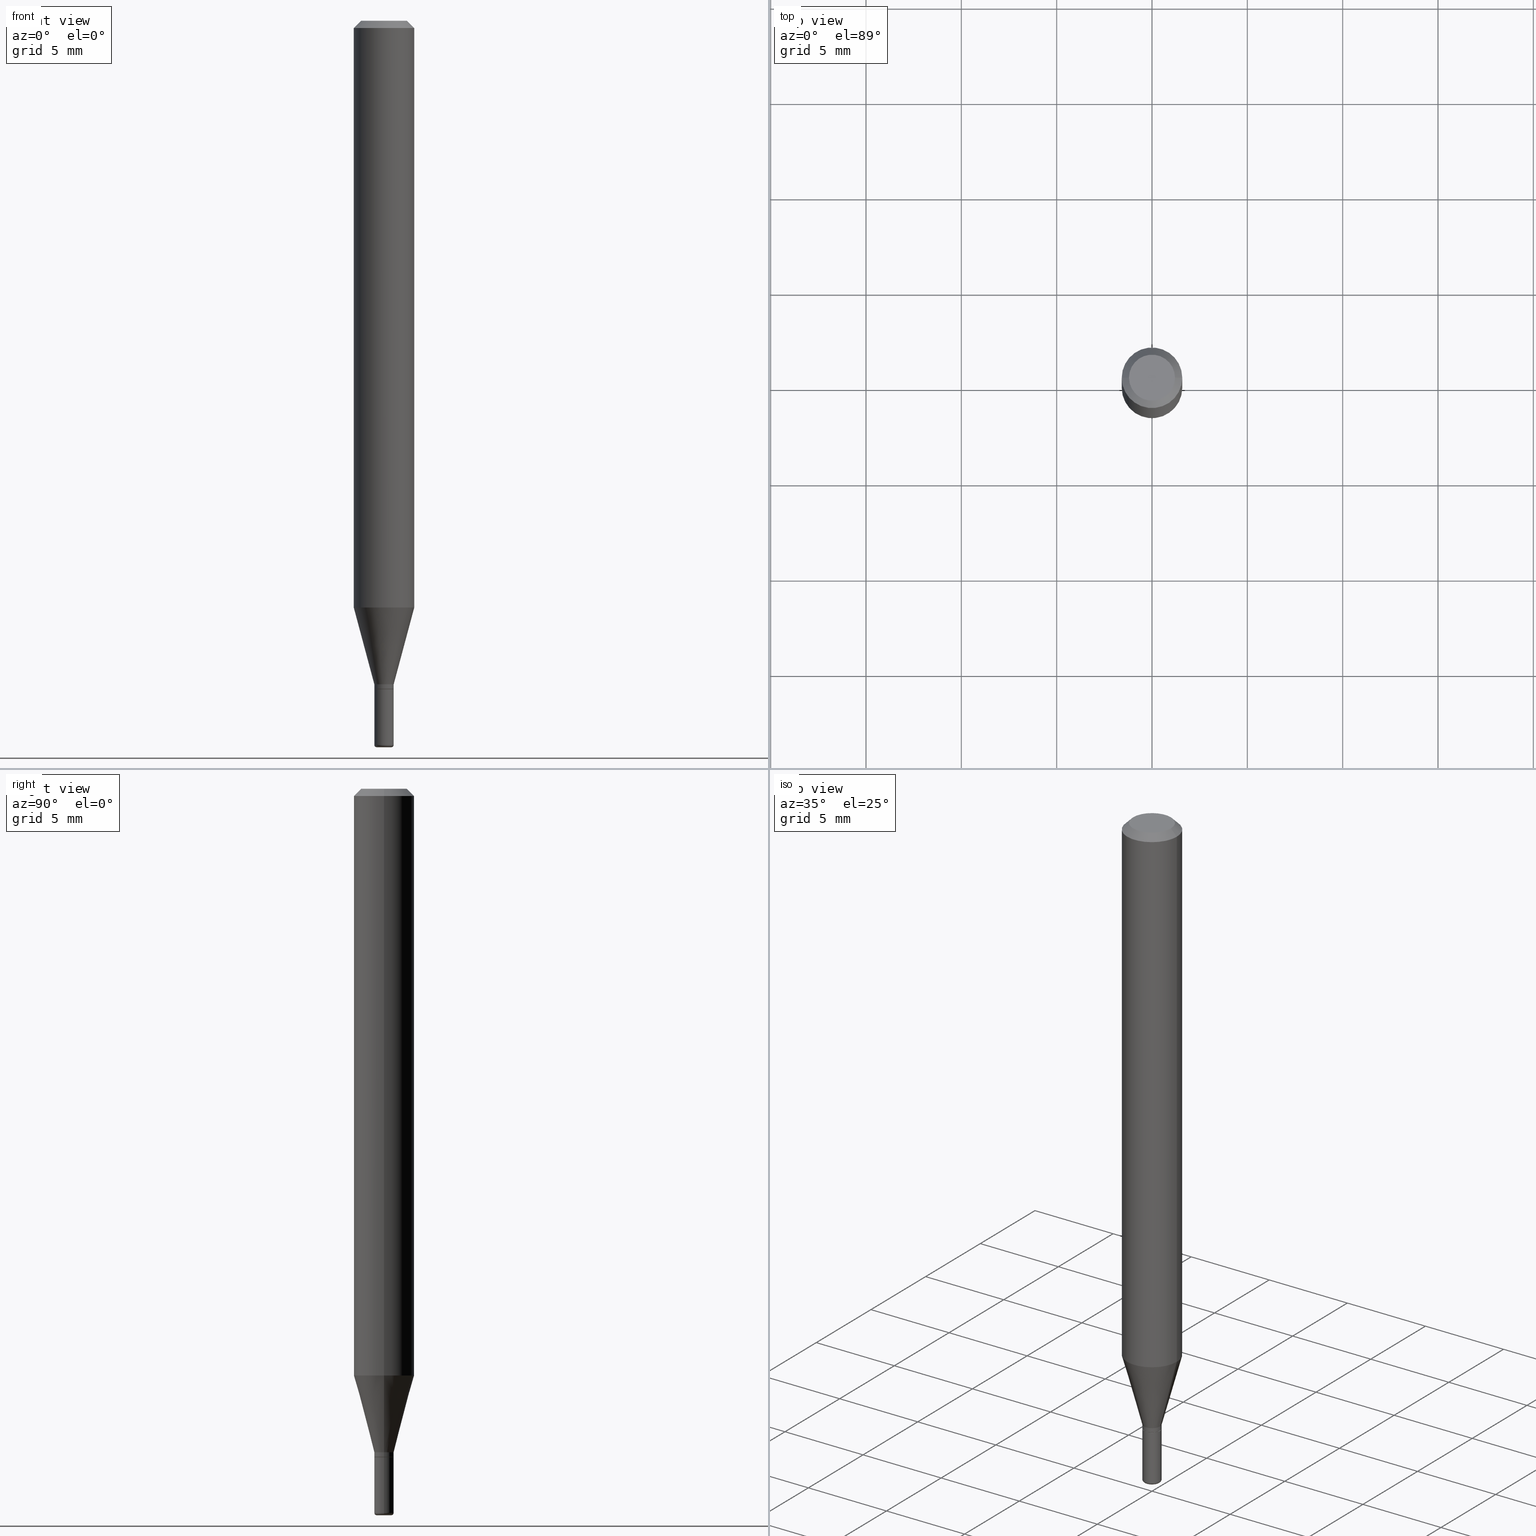
[diagram: canonical four-view strip — front | top / right | iso, engineering-drawing reading convention]
A machine part, canonical four-view strip (front | top / right | iso — engineering-drawing reading convention). The complete STEP part file that produces these views, byte-faithful:
ISO-10303-21;
HEADER;
FILE_DESCRIPTION (( 'STEP AP203' ),
    '1' );
FILE_NAME ('08655.STEP',
    '2024-02-29T20:11:54',
    ( '' ),
    ( '' ),
    'SwSTEP 2.0',
    'SolidWorks 2023',
    '' );
FILE_SCHEMA (( 'CONFIG_CONTROL_DESIGN' ));
ENDSEC;

DATA;
#1 = PERSON_AND_ORGANIZATION ( #372, #334 ) ;
#2 = EDGE_CURVE ( 'NONE', #157, #448, #465, .T. ) ;
#3 = PERSON_AND_ORGANIZATION ( #372, #334 ) ;
#4 = AXIS2_PLACEMENT_3D ( 'NONE', #487, #155, #360 ) ;
#5 = CARTESIAN_POINT ( 'NONE',  ( 3.350292264473637608E-29, -4.783329434215110683E-15, -1.370000000000000329 ) ) ;
#6 = CC_DESIGN_APPROVAL ( #86, ( #367 ) ) ;
#7 = DESIGN_CONTEXT ( 'detailed design', #124, 'design' ) ;
#8 = DIRECTION ( 'NONE',  ( 1.000000000000000000, -6.982962677686266711E-15, 0.000000000000000000 ) ) ;
#9 = VERTEX_POINT ( 'NONE', #368 ) ;
#10 = DIRECTION ( 'NONE',  ( 1.000000000000000000, -6.982962677686276177E-15, 0.000000000000000000 ) ) ;
#11 = SHAPE_DEFINITION_REPRESENTATION ( #182, #345 ) ;
#12 = EDGE_CURVE ( 'NONE', #375, #143, #115, .T. ) ;
#13 = AXIS2_PLACEMENT_3D ( 'NONE', #121, #266, #391 ) ;
#14 = ORIENTED_EDGE ( 'NONE', *, *, #88, .T. ) ;
#15 = VERTEX_POINT ( 'NONE', #246 ) ;
#16 = DIRECTION ( 'NONE',  ( -2.438088387897960049E-29, 3.491481338843145188E-15, 1.000000000000000000 ) ) ;
#17 = EDGE_CURVE ( 'NONE', #74, #395, #106, .T. ) ;
#18 = CARTESIAN_POINT ( 'NONE',  ( 3.668203209277706016E-29, -5.237222008264719754E-15, -1.500000000000000444 ) ) ;
#19 = VERTEX_POINT ( 'NONE', #233 ) ;
#20 = CARTESIAN_POINT ( 'NONE',  ( 0.06250000000000000000, -4.811533449433669144E-16, -0.01499999999999970281 ) ) ;
#21 = DIRECTION ( 'NONE',  ( 1.000000000000000000, -6.982962677686284065E-15, 0.000000000000000000 ) ) ;
#22 = CARTESIAN_POINT ( 'NONE',  ( 2.962411176570810218E-29, -4.229538039829860109E-15, -1.211387840678323391 ) ) ;
#23 = LINE ( 'NONE', #446, #432 ) ;
#24 = ADVANCED_FACE ( 'NONE', ( #238 ), #359, .T. ) ;
#25 = DIRECTION ( 'NONE',  ( -2.445468806185136597E-29, 3.491481338843145583E-15, 1.000000000000000000 ) ) ;
#26 = CIRCLE ( 'NONE', #514, 0.06250000000000000000 ) ;
#27 = LOCAL_TIME ( 15, 11, 54.00000000000000000, #460 ) ;
#28 = DATE_TIME_ROLE ( 'creation_date' ) ;
#29 = CARTESIAN_POINT ( 'NONE',  ( 0.000000000000000000, 0.000000000000000000, 0.000000000000000000 ) ) ;
#30 = ORIENTED_EDGE ( 'NONE', *, *, #17, .T. ) ;
#31 = ORIENTED_EDGE ( 'NONE', *, *, #203, .T. ) ;
#32 = CARTESIAN_POINT ( 'NONE',  ( -0.01950000000000008671, -4.679688414130321489E-15, -1.380000000000000115 ) ) ;
#33 = CC_DESIGN_PERSON_AND_ORGANIZATION_ASSIGNMENT ( #389, #356, ( #367 ) ) ;
#34 = DIRECTION ( 'NONE',  ( 1.000000000000000000, -6.982962677686266711E-15, 4.876176775795935793E-29 ) ) ;
#35 = APPROVAL_DATE_TIME ( #72, #393 ) ;
#36 = DIRECTION ( 'NONE',  ( -2.445468806185136877E-29, 3.491481338843145188E-15, 1.000000000000000000 ) ) ;
#37 = CONICAL_SURFACE ( 'NONE', #167, 0.02000000000000008021, 0.2617993877991493523 ) ;
#38 = VERTEX_POINT ( 'NONE', #202 ) ;
#39 = DIRECTION ( 'NONE',  ( 2.438088387897960049E-29, -3.491481338843145188E-15, -1.000000000000000000 ) ) ;
#40 = APPROVAL_STATUS ( 'not_yet_approved' ) ;
#41 = AXIS2_PLACEMENT_3D ( 'NONE', #510, #259, #303 ) ;
#42 = DIRECTION ( 'NONE',  ( 1.000000000000000000, -6.982962677686276177E-15, 0.000000000000000000 ) ) ;
#43 = LOCAL_TIME ( 15, 11, 54.00000000000000000, #51 ) ;
#44 = EDGE_LOOP ( 'NONE', ( #421, #340 ) ) ;
#45 = CARTESIAN_POINT ( 'NONE',  ( 3.374746952535488593E-29, -4.818244247603541543E-15, -1.380000000000000115 ) ) ;
#46 = DIRECTION ( 'NONE',  ( -2.445468806185136597E-29, 3.491481338843145583E-15, 1.000000000000000000 ) ) ;
#47 = ADVANCED_FACE ( 'NONE', ( #125 ), #234, .F. ) ;
#48 = ORIENTED_EDGE ( 'NONE', *, *, #247, .T. ) ;
#49 = VERTEX_POINT ( 'NONE', #163 ) ;
#50 = ORIENTED_EDGE ( 'NONE', *, *, #378, .F. ) ;
#51 = COORDINATED_UNIVERSAL_TIME_OFFSET ( 5, 0, .BEHIND. ) ;
#52 = VECTOR ( 'NONE', #352, 39.37007874015748143 ) ;
#53 = AXIS2_PLACEMENT_3D ( 'NONE', #223, #382, #34 ) ;
#54 = TOROIDAL_SURFACE ( 'NONE', #219, 0.01499999999999999944, 0.005000000000000177913 ) ;
#55 = EDGE_LOOP ( 'NONE', ( #214, #507, #271, #205 ) ) ;
#56 = EDGE_CURVE ( 'NONE', #38, #150, #319, .T. ) ;
#57 = CYLINDRICAL_SURFACE ( 'NONE', #116, 0.02000000000000009062 ) ;
#58 = DIRECTION ( 'NONE',  ( 1.000000000000000000, -6.982962677686266711E-15, 0.000000000000000000 ) ) ;
#59 = AXIS2_PLACEMENT_3D ( 'NONE', #339, #73, #385 ) ;
#60 = DIRECTION ( 'NONE',  ( -2.445468806185136597E-29, 3.491481338843145583E-15, 1.000000000000000000 ) ) ;
#61 = FACE_OUTER_BOUND ( 'NONE', #114, .T. ) ;
#62 = ORIENTED_EDGE ( 'NONE', *, *, #498, .T. ) ;
#63 = DIRECTION ( 'NONE',  ( -2.445468806185136597E-29, 3.491481338843145583E-15, 1.000000000000000000 ) ) ;
#64 = CARTESIAN_POINT ( 'NONE',  ( 0.02000000000000008021, -4.922988687768836490E-15, -1.370000000000000329 ) ) ;
#65 = ORIENTED_EDGE ( 'NONE', *, *, #349, .T. ) ;
#66 = CIRCLE ( 'NONE', #365, 0.01500000000000000291 ) ;
#67 = CIRCLE ( 'NONE', #458, 0.04750000000000000749 ) ;
#68 = PERSON_AND_ORGANIZATION ( #372, #334 ) ;
#69 = EDGE_CURVE ( 'NONE', #138, #15, #376, .T. ) ;
#70 = EDGE_LOOP ( 'NONE', ( #204, #126, #62, #147 ) ) ;
#71 = DIRECTION ( 'NONE',  ( -1.000000000000000000, 6.982962677686265922E-15, -4.876176775795935793E-29 ) ) ;
#72 = DATE_AND_TIME ( #338, #27 ) ;
#73 = DIRECTION ( 'NONE',  ( -2.445468806185136597E-29, 3.491481338843145583E-15, 1.000000000000000000 ) ) ;
#74 = VERTEX_POINT ( 'NONE', #154 ) ;
#75 = FACE_OUTER_BOUND ( 'NONE', #398, .T. ) ;
#76 = DIRECTION ( 'NONE',  ( -2.445468806185136597E-29, 3.491481338843145583E-15, 1.000000000000000000 ) ) ;
#77 = DIRECTION ( 'NONE',  ( 2.438088387897960049E-29, -3.491481338843145188E-15, -1.000000000000000000 ) ) ;
#78 = EDGE_CURVE ( 'NONE', #112, #199, #89, .T. ) ;
#79 = AXIS2_PLACEMENT_3D ( 'NONE', #326, #451, #95 ) ;
#80 = VECTOR ( 'NONE', #208, 39.37007874015748854 ) ;
#81 = CC_DESIGN_SECURITY_CLASSIFICATION ( #367, ( #502 ) ) ;
#82 = PRODUCT ( '08655', '08655', '', ( #341 ) ) ;
#83 = AXIS2_PLACEMENT_3D ( 'NONE', #193, #39, #311 ) ;
#84 = DIRECTION ( 'NONE',  ( 1.000000000000000000, -6.982962677686276177E-15, 0.000000000000000000 ) ) ;
#85 = DIRECTION ( 'NONE',  ( -2.445468806185136597E-29, 3.491481338843145583E-15, 1.000000000000000000 ) ) ;
#86 = APPROVAL ( #40, 'UNSPECIFIED' ) ;
#87 = ORIENTED_EDGE ( 'NONE', *, *, #88, .F. ) ;
#88 = EDGE_CURVE ( 'NONE', #258, #353, #410, .T. ) ;
#89 = CIRCLE ( 'NONE', #212, 0.01950000000000008671 ) ;
#90 = CC_DESIGN_APPROVAL ( #393, ( #190 ) ) ;
#91 = DIRECTION ( 'NONE',  ( -2.445468806185136597E-29, 3.491481338843145583E-15, 1.000000000000000000 ) ) ;
#92 = EDGE_LOOP ( 'NONE', ( #108, #268, #275, #371 ) ) ;
#93 = DIRECTION ( 'NONE',  ( 1.000000000000000000, -6.982962677686252511E-15, 0.000000000000000000 ) ) ;
#94 = ORIENTED_EDGE ( 'NONE', *, *, #471, .F. ) ;
#95 = DIRECTION ( 'NONE',  ( 1.000000000000000000, -6.982962677686266711E-15, 4.852736867747365086E-29 ) ) ;
#96 = DIRECTION ( 'NONE',  ( -1.000000000000000000, 7.105427357601058657E-15, 0.000000000000000000 ) ) ;
#97 = EDGE_CURVE ( 'NONE', #143, #375, #187, .T. ) ;
#98 = DIRECTION ( 'NONE',  ( -2.445468806185136597E-29, 3.491481338843145583E-15, 1.000000000000000000 ) ) ;
#99 = LOCAL_TIME ( 15, 11, 54.00000000000000000, #260 ) ;
#100 = FACE_OUTER_BOUND ( 'NONE', #227, .T. ) ;
#101 = PERSON_AND_ORGANIZATION ( #372, #334 ) ;
#102 = LINE ( 'NONE', #265, #80 ) ;
#103 = SECURITY_CLASSIFICATION_LEVEL ( 'unclassified' ) ;
#104 = ADVANCED_FACE ( 'NONE', ( #264 ), #296, .T. ) ;
#105 = CLOSED_SHELL ( 'NONE', ( #241, #358, #161, #210, #479, #47 ) ) ;
#106 = CIRCLE ( 'NONE', #277, 0.02000000000000009062 ) ;
#107 = CARTESIAN_POINT ( 'NONE',  ( 3.350292264473637608E-29, -4.783329434215110683E-15, -1.370000000000000329 ) ) ;
#108 = ORIENTED_EDGE ( 'NONE', *, *, #337, .T. ) ;
#109 = DIRECTION ( 'NONE',  ( -0.7071067811864267805, 7.493145998869918709E-15, 0.7071067811866682540 ) ) ;
#110 = CYLINDRICAL_SURFACE ( 'NONE', #53, 0.06250000000000000000 ) ;
#111 = APPLICATION_PROTOCOL_DEFINITION ( 'international standard', 'config_control_design', 1994, #480 ) ;
#112 = VERTEX_POINT ( 'NONE', #231 ) ;
#113 = EDGE_CURVE ( 'NONE', #375, #138, #396, .T. ) ;
#114 = EDGE_LOOP ( 'NONE', ( #328, #493, #281, #409 ) ) ;
#115 = CIRCLE ( 'NONE', #476, 0.06250000000000000000 ) ;
#116 = AXIS2_PLACEMENT_3D ( 'NONE', #484, #209, #373 ) ;
#117 = DIRECTION ( 'NONE',  ( -2.445468806185136597E-29, 3.491481338843145583E-15, 1.000000000000000000 ) ) ;
#118 = APPROVAL_ROLE ( '' ) ;
#119 = DIRECTION ( 'NONE',  ( 1.000000000000000000, -6.982962677686270655E-15, 0.000000000000000000 ) ) ;
#120 = APPROVAL ( #426, 'UNSPECIFIED' ) ;
#121 = CARTESIAN_POINT ( 'NONE',  ( 3.668203209277706016E-29, -5.237222008264719754E-15, -1.500000000000000444 ) ) ;
#122 = AXIS2_PLACEMENT_3D ( 'NONE', #240, #63, #361 ) ;
#123 = DATE_TIME_ROLE ( 'classification_date' ) ;
#124 = APPLICATION_CONTEXT ( 'configuration controlled 3d designs of mechanical parts and assemblies' ) ;
#125 = FACE_OUTER_BOUND ( 'NONE', #400, .T. ) ;
#126 = ORIENTED_EDGE ( 'NONE', *, *, #12, .T. ) ;
#127 = CARTESIAN_POINT ( 'NONE',  ( 0.02000000000000009062, -1.396592535537259554E-16, 9.752353551591915727E-31 ) ) ;
#128 = DIRECTION ( 'NONE',  ( -2.445468806185136597E-29, 3.491481338843145583E-15, 1.000000000000000000 ) ) ;
#129 = AXIS2_PLACEMENT_3D ( 'NONE', #301, #310, #8 ) ;
#130 = CC_DESIGN_APPROVAL ( #120, ( #502 ) ) ;
#131 = CARTESIAN_POINT ( 'NONE',  ( -0.02000000000000008021, -4.641220887063090519E-15, -1.370000000000000329 ) ) ;
#132 = CYLINDRICAL_SURFACE ( 'NONE', #456, 0.02000000000000009062 ) ;
#133 = DIRECTION ( 'NONE',  ( -2.445468806185136877E-29, 3.491481338843145188E-15, 1.000000000000000000 ) ) ;
#134 = PRODUCT_RELATED_PRODUCT_CATEGORY ( 'detail', '', ( #82 ) ) ;
#135 = DIRECTION ( 'NONE',  ( 0.7071067811864267805, -2.468850131080992517E-15, 0.7071067811866682540 ) ) ;
#136 = AXIS2_PLACEMENT_3D ( 'NONE', #5, #117, #390 ) ;
#137 = CARTESIAN_POINT ( 'NONE',  ( 3.373524218132395792E-29, -4.816498506934119251E-15, -1.379499999999999948 ) ) ;
#138 = VERTEX_POINT ( 'NONE', #144 ) ;
#139 = EDGE_CURVE ( 'NONE', #258, #38, #251, .T. ) ;
#140 = APPROVAL_STATUS ( 'not_yet_approved' ) ;
#141 = FACE_OUTER_BOUND ( 'NONE', #44, .T. ) ;
#142 = DIRECTION ( 'NONE',  ( -2.445468806185136597E-29, 3.491481338843145583E-15, 1.000000000000000000 ) ) ;
#143 = VERTEX_POINT ( 'NONE', #183 ) ;
#144 = CARTESIAN_POINT ( 'NONE',  ( -0.06250000000000000000, -1.696865920106190386E-15, -0.01499999999999970281 ) ) ;
#145 = AXIS2_PLACEMENT_3D ( 'NONE', #511, #299, #425 ) ;
#146 = PERSON_AND_ORGANIZATION_ROLE ( 'design_owner' ) ;
#147 = ORIENTED_EDGE ( 'NONE', *, *, #69, .F. ) ;
#148 = CARTESIAN_POINT ( 'NONE',  ( -0.06250000000000000000, 4.440892098500626162E-16, -3.074334431409316114E-30 ) ) ;
#149 = DIRECTION ( 'NONE',  ( -2.445468806185136877E-29, 3.491481338843145188E-15, 1.000000000000000000 ) ) ;
#150 = VERTEX_POINT ( 'NONE', #298 ) ;
#151 = AXIS2_PLACEMENT_3D ( 'NONE', #229, #348, #434 ) ;
#152 = CALENDAR_DATE ( 2024, 29, 2 ) ;
#153 = EDGE_CURVE ( 'NONE', #199, #74, #381, .T. ) ;
#154 = CARTESIAN_POINT ( 'NONE',  ( -0.02000000000000009062, -4.674389959782099087E-15, -1.379499999999999948 ) ) ;
#155 = DIRECTION ( 'NONE',  ( -2.445468806185136597E-29, 3.491481338843145583E-15, 1.000000000000000000 ) ) ;
#156 = ORIENTED_EDGE ( 'NONE', *, *, #483, .T. ) ;
#157 = VERTEX_POINT ( 'NONE', #255 ) ;
#158 = CARTESIAN_POINT ( 'NONE',  ( 2.962411176570810218E-29, -4.229538039829860109E-15, -1.211387840678323391 ) ) ;
#159 = CARTESIAN_POINT ( 'NONE',  ( 3.655975865246779122E-29, -5.219764601570503141E-15, -1.495000000000000107 ) ) ;
#160 = CIRCLE ( 'NONE', #206, 0.02000000000000018083 ) ;
#161 = ADVANCED_FACE ( 'NONE', ( #424 ), #473, .F. ) ;
#162 = ORIENTED_EDGE ( 'NONE', *, *, #513, .T. ) ;
#163 = CARTESIAN_POINT ( 'NONE',  ( -0.02000000000000008021, -4.213334858521442823E-15, -1.370000000000000329 ) ) ;
#164 = CARTESIAN_POINT ( 'NONE',  ( 3.668203209277632395E-31, -5.237222008264614861E-17, -0.01499999999999970281 ) ) ;
#165 = CARTESIAN_POINT ( 'NONE',  ( -0.01500000000000000291, -5.104148326159593410E-15, -1.500000000000000444 ) ) ;
#166 = DIRECTION ( 'NONE',  ( 1.000000000000000000, -6.982962677686266711E-15, 0.000000000000000000 ) ) ;
#167 = AXIS2_PLACEMENT_3D ( 'NONE', #447, #25, #443 ) ;
#168 = ADVANCED_FACE ( 'NONE', ( #170 ), #307, .T. ) ;
#169 = DIRECTION ( 'NONE',  ( 0.7071067811865479058, -7.319954787623257623E-15, -0.7071067811865471286 ) ) ;
#170 = FACE_OUTER_BOUND ( 'NONE', #55, .T. ) ;
#171 = LINE ( 'NONE', #496, #236 ) ;
#172 = ORIENTED_EDGE ( 'NONE', *, *, #153, .T. ) ;
#173 = CARTESIAN_POINT ( 'NONE',  ( 3.668203209277632395E-31, -5.237222008264614861E-17, -0.01499999999999970281 ) ) ;
#174 = CYLINDRICAL_SURFACE ( 'NONE', #245, 0.02000000000000008715 ) ;
#175 = ADVANCED_FACE ( 'NONE', ( #180 ), #470, .T. ) ;
#176 = AXIS2_PLACEMENT_3D ( 'NONE', #419, #221, #380 ) ;
#177 = CARTESIAN_POINT ( 'NONE',  ( 0.000000000000000000, 0.000000000000000000, 0.000000000000000000 ) ) ;
#178 =( CONVERSION_BASED_UNIT ( 'INCH', #379 ) LENGTH_UNIT ( ) NAMED_UNIT ( #351 ) );
#179 = ORIENTED_EDGE ( 'NONE', *, *, #17, .F. ) ;
#180 = FACE_OUTER_BOUND ( 'NONE', #287, .T. ) ;
#181 = EDGE_LOOP ( 'NONE', ( #244, #455, #472, #179 ) ) ;
#182 = PRODUCT_DEFINITION_SHAPE ( 'NONE', 'NONE',  #190 ) ;
#183 = CARTESIAN_POINT ( 'NONE',  ( 0.06250000000000000000, -4.665973207185250989E-15, -1.211387840678323391 ) ) ;
#184 = CARTESIAN_POINT ( 'NONE',  ( 3.374746952535488593E-29, -4.818244247603541543E-15, -1.380000000000000115 ) ) ;
#185 = PERSON_AND_ORGANIZATION ( #372, #334 ) ;
#186 = DIRECTION ( 'NONE',  ( 1.000000000000000000, -6.982962677686284065E-15, 0.000000000000000000 ) ) ;
#187 = CIRCLE ( 'NONE', #267, 0.06250000000000000000 ) ;
#188 = VECTOR ( 'NONE', #169, 39.37007874015748143 ) ;
#189 =( NAMED_UNIT ( * ) SI_UNIT ( $, .STERADIAN. ) SOLID_ANGLE_UNIT ( ) );
#190 = PRODUCT_DEFINITION ( 'UNKNOWN', '', #502, #7 ) ;
#191 = DIRECTION ( 'NONE',  ( -2.445468806185136597E-29, 3.491481338843145583E-15, 1.000000000000000000 ) ) ;
#192 = EDGE_LOOP ( 'NONE', ( #488, #172, #302, #94 ) ) ;
#193 = CARTESIAN_POINT ( 'NONE',  ( 3.316907271900976589E-16, 0.04750000000000000749, -2.925296391183627249E-17 ) ) ;
#194 = EDGE_CURVE ( 'NONE', #19, #38, #160, .T. ) ;
#195 = AXIS2_PLACEMENT_3D ( 'NONE', #401, #16, #322 ) ;
#196 = LOCAL_TIME ( 15, 11, 54.00000000000000000, #384 ) ;
#197 = ORIENTED_EDGE ( 'NONE', *, *, #306, .T. ) ;
#198 = COORDINATED_UNIVERSAL_TIME_OFFSET ( 5, 0, .BEHIND. ) ;
#199 = VERTEX_POINT ( 'NONE', #278 ) ;
#200 = CARTESIAN_POINT ( 'NONE',  ( 3.374746952535488593E-29, -4.818244247603541543E-15, -1.380000000000000115 ) ) ;
#201 = LINE ( 'NONE', #20, #188 ) ;
#202 = CARTESIAN_POINT ( 'NONE',  ( 0.02000000000000018083, -5.359423855124230526E-15, -1.495000000000000329 ) ) ;
#203 = EDGE_CURVE ( 'NONE', #15, #138, #26, .T. ) ;
#204 = ORIENTED_EDGE ( 'NONE', *, *, #113, .F. ) ;
#205 = ORIENTED_EDGE ( 'NONE', *, *, #69, .T. ) ;
#206 = AXIS2_PLACEMENT_3D ( 'NONE', #431, #191, #517 ) ;
#207 = AXIS2_PLACEMENT_3D ( 'NONE', #366, #213, #457 ) ;
#208 = DIRECTION ( 'NONE',  ( 0.2588190451025206285, 1.565188264969627095E-15, 0.9659258262890682012 ) ) ;
#209 = DIRECTION ( 'NONE',  ( -2.445468806185136597E-29, 3.491481338843145583E-15, 1.000000000000000000 ) ) ;
#210 = ADVANCED_FACE ( 'NONE', ( #325 ), #132, .T. ) ;
#211 = FACE_OUTER_BOUND ( 'NONE', #286, .T. ) ;
#212 = AXIS2_PLACEMENT_3D ( 'NONE', #200, #312, #42 ) ;
#213 = DIRECTION ( 'NONE',  ( 2.445468806185136597E-29, -3.491481338843145583E-15, -1.000000000000000000 ) ) ;
#214 = ORIENTED_EDGE ( 'NONE', *, *, #435, .F. ) ;
#215 = DIRECTION ( 'NONE',  ( 1.000000000000000000, -6.982962677686269866E-15, 4.883557194083113462E-29 ) ) ;
#216 = ADVANCED_FACE ( 'NONE', ( #141 ), #250, .F. ) ;
#217 = DIRECTION ( 'NONE',  ( 1.000000000000000000, -6.982962677686266711E-15, 4.852736867747365086E-29 ) ) ;
#218 = ORIENTED_EDGE ( 'NONE', *, *, #383, .F. ) ;
#219 = AXIS2_PLACEMENT_3D ( 'NONE', #159, #128, #215 ) ;
#220 = DIRECTION ( 'NONE',  ( -2.445468806185136597E-29, 3.491481338843145583E-15, 1.000000000000000000 ) ) ;
#221 = DIRECTION ( 'NONE',  ( -2.438088387897960049E-29, 3.491481338843145188E-15, 1.000000000000000000 ) ) ;
#222 = EDGE_CURVE ( 'NONE', #9, #150, #485, .T. ) ;
#223 = CARTESIAN_POINT ( 'NONE',  ( 0.000000000000000000, 0.000000000000000000, 0.000000000000000000 ) ) ;
#224 = APPROVAL_ROLE ( '' ) ;
#225 = CIRCLE ( 'NONE', #262, 0.02000000000000000042 ) ;
#226 = DIRECTION ( 'NONE',  ( 0.000000000000000000, 0.000000000000000000, 1.000000000000000000 ) ) ;
#227 = EDGE_LOOP ( 'NONE', ( #461, #481, #495, #442 ) ) ;
#228 = ADVANCED_FACE ( 'NONE', ( #75 ), #110, .T. ) ;
#229 = CARTESIAN_POINT ( 'NONE',  ( 3.350292264473637608E-29, -4.783329434215110683E-15, -1.370000000000000329 ) ) ;
#230 = CIRCLE ( 'NONE', #151, 0.02000000000000008021 ) ;
#231 = CARTESIAN_POINT ( 'NONE',  ( 0.01950000000000008671, -4.954412019818424343E-15, -1.380000000000000115 ) ) ;
#232 = DIRECTION ( 'NONE',  ( -2.445468806185136597E-29, 3.491481338843145583E-15, 1.000000000000000000 ) ) ;
#233 = CARTESIAN_POINT ( 'NONE',  ( -0.02000000000000018083, -4.876895877435000601E-15, -1.495000000000000329 ) ) ;
#234 = PLANE ( 'NONE',  #195 ) ;
#235 = VECTOR ( 'NONE', #242, 39.37007874015748854 ) ;
#236 = VECTOR ( 'NONE', #135, 39.37007874015748143 ) ;
#237 = PLANE ( 'NONE',  #83 ) ;
#238 = FACE_OUTER_BOUND ( 'NONE', #70, .T. ) ;
#239 = EDGE_LOOP ( 'NONE', ( #50, #467, #297, #464 ) ) ;
#240 = CARTESIAN_POINT ( 'NONE',  ( 3.374746952535488593E-29, -4.818244247603541543E-15, -1.380000000000000115 ) ) ;
#241 = ADVANCED_FACE ( 'NONE', ( #256 ), #316, .T. ) ;
#242 = DIRECTION ( 'NONE',  ( -0.2588190451025206285, 5.211531920934544731E-15, 0.9659258262890682012 ) ) ;
#243 = DIRECTION ( 'NONE',  ( 1.000000000000000000, -6.982962677686265922E-15, 4.876176775795934672E-29 ) ) ;
#244 = ORIENTED_EDGE ( 'NONE', *, *, #153, .F. ) ;
#245 = AXIS2_PLACEMENT_3D ( 'NONE', #449, #91, #243 ) ;
#246 = CARTESIAN_POINT ( 'NONE',  ( 0.06250000000000000000, -4.888073874380378612E-16, -0.01499999999999970281 ) ) ;
#247 = EDGE_CURVE ( 'NONE', #150, #9, #225, .T. ) ;
#248 = CARTESIAN_POINT ( 'NONE',  ( -6.680649051745406845E-45, 9.538196290434862081E-31, 2.731847993664263218E-16 ) ) ;
#249 = PERSON_AND_ORGANIZATION_ROLE ( 'creator' ) ;
#250 = PLANE ( 'NONE',  #176 ) ;
#251 = CIRCLE ( 'NONE', #41, 0.005000000000000179648 ) ;
#252 = AXIS2_PLACEMENT_3D ( 'NONE', #330, #232, #10 ) ;
#253 =( LENGTH_UNIT ( ) NAMED_UNIT ( * ) SI_UNIT ( $, .METRE. ) );
#254 = CC_DESIGN_DATE_AND_TIME_ASSIGNMENT ( #269, #123, ( #367 ) ) ;
#255 = CARTESIAN_POINT ( 'NONE',  ( -0.04750000000000000749, 3.578768372314221353E-16, 2.731847993664239060E-16 ) ) ;
#256 = FACE_OUTER_BOUND ( 'NONE', #364, .T. ) ;
#257 = CALENDAR_DATE ( 2024, 29, 2 ) ;
#258 = VERTEX_POINT ( 'NONE', #374 ) ;
#259 = DIRECTION ( 'NONE',  ( -6.982962677686266711E-15, -1.000000000000000000, 3.491481338843145583E-15 ) ) ;
#260 = COORDINATED_UNIVERSAL_TIME_OFFSET ( 5, 0, .BEHIND. ) ;
#261 = AXIS2_PLACEMENT_3D ( 'NONE', #452, #324, #96 ) ;
#262 = AXIS2_PLACEMENT_3D ( 'NONE', #184, #363, #21 ) ;
#263 = ADVANCED_FACE ( 'NONE', ( #497 ), #37, .T. ) ;
#264 = FACE_OUTER_BOUND ( 'NONE', #192, .T. ) ;
#265 = CARTESIAN_POINT ( 'NONE',  ( 0.02000000000000008021, -4.922988687768836490E-15, -1.370000000000000329 ) ) ;
#266 = DIRECTION ( 'NONE',  ( -2.445468806185136597E-29, 3.491481338843145583E-15, 1.000000000000000000 ) ) ;
#267 = AXIS2_PLACEMENT_3D ( 'NONE', #158, #437, #119 ) ;
#268 = ORIENTED_EDGE ( 'NONE', *, *, #378, .T. ) ;
#269 = DATE_AND_TIME ( #152, #317 ) ;
#270 = CONICAL_SURFACE ( 'NONE', #122, 0.01950000000000008671, 0.7853981633972775267 ) ;
#271 = ORIENTED_EDGE ( 'NONE', *, *, #440, .T. ) ;
#272 = CC_DESIGN_DATE_AND_TIME_ASSIGNMENT ( #417, #28, ( #190 ) ) ;
#273 = ORIENTED_EDGE ( 'NONE', *, *, #139, .F. ) ;
#274 = ORIENTED_EDGE ( 'NONE', *, *, #320, .F. ) ;
#275 = ORIENTED_EDGE ( 'NONE', *, *, #247, .F. ) ;
#276 = ADVANCED_FACE ( 'NONE', ( #504 ), #237, .F. ) ;
#277 = AXIS2_PLACEMENT_3D ( 'NONE', #413, #60, #438 ) ;
#278 = CARTESIAN_POINT ( 'NONE',  ( -0.01950000000000008671, -4.677039186956209499E-15, -1.380000000000000115 ) ) ;
#279 = CARTESIAN_POINT ( 'NONE',  ( -0.06250000000000000000, -3.785448829979796704E-15, -1.211387840678323391 ) ) ;
#280 = CIRCLE ( 'NONE', #377, 0.02000000000000009062 ) ;
#281 = ORIENTED_EDGE ( 'NONE', *, *, #306, .F. ) ;
#282 = CARTESIAN_POINT ( 'NONE',  ( 0.02000000000000009062, -4.956157760487845847E-15, -1.379499999999999948 ) ) ;
#283 = LINE ( 'NONE', #131, #235 ) ;
#284 = ORIENTED_EDGE ( 'NONE', *, *, #113, .T. ) ;
#285 = ADVANCED_FACE ( 'NONE', ( #346 ), #466, .T. ) ;
#286 = EDGE_LOOP ( 'NONE', ( #463, #423, #31, #362 ) ) ;
#287 = EDGE_LOOP ( 'NONE', ( #500, #30, #486, #355 ) ) ;
#288 = DIRECTION ( 'NONE',  ( -0.7071067811865479058, 2.468850131082261005E-15, -0.7071067811865471286 ) ) ;
#289 = AXIS2_PLACEMENT_3D ( 'NONE', #45, #436, #84 ) ;
#290 = DIRECTION ( 'NONE',  ( 1.000000000000000000, -6.982962677686269077E-15, 0.000000000000000000 ) ) ;
#291 = CALENDAR_DATE ( 2024, 29, 2 ) ;
#292 = ORIENTED_EDGE ( 'NONE', *, *, #2, .T. ) ;
#293 =( NAMED_UNIT ( * ) PLANE_ANGLE_UNIT ( ) SI_UNIT ( $, .RADIAN. ) );
#294 = CC_DESIGN_PERSON_AND_ORGANIZATION_ASSIGNMENT ( #185, #505, ( #190 ) ) ;
#295 = ORIENTED_EDGE ( 'NONE', *, *, #12, .F. ) ;
#296 = CONICAL_SURFACE ( 'NONE', #289, 0.01950000000000008671, 0.7853981633972775267 ) ;
#297 = ORIENTED_EDGE ( 'NONE', *, *, #56, .T. ) ;
#298 = CARTESIAN_POINT ( 'NONE',  ( 0.02000000000000000042, -4.957903501157267351E-15, -1.380000000000000115 ) ) ;
#299 = DIRECTION ( 'NONE',  ( -2.445468806185136597E-29, 3.491481338843145583E-15, 1.000000000000000000 ) ) ;
#300 = LINE ( 'NONE', #304, #490 ) ;
#301 = CARTESIAN_POINT ( 'NONE',  ( 3.668203209277632395E-31, -5.237222008264614861E-17, -0.01499999999999970281 ) ) ;
#302 = ORIENTED_EDGE ( 'NONE', *, *, #416, .F. ) ;
#303 = DIRECTION ( 'NONE',  ( 1.000000000000000000, -6.982962677686276177E-15, 0.000000000000000000 ) ) ;
#304 = CARTESIAN_POINT ( 'NONE',  ( 0.06250000000000000000, -4.364351673553916694E-16, 3.047610484872459871E-30 ) ) ;
#305 = ORIENTED_EDGE ( 'NONE', *, *, #498, .F. ) ;
#306 = EDGE_CURVE ( 'NONE', #503, #49, #230, .T. ) ;
#307 = CONICAL_SURFACE ( 'NONE', #342, 0.06250000000000000000, 0.7853981633974488341 ) ;
#308 = APPROVAL_PERSON_ORGANIZATION ( #3, #86, #118 ) ;
#309 = DATE_AND_TIME ( #441, #43 ) ;
#310 = DIRECTION ( 'NONE',  ( -2.445468806185136597E-29, 3.491481338843145583E-15, 1.000000000000000000 ) ) ;
#311 = DIRECTION ( 'NONE',  ( -1.000000000000000000, 6.982962677686265922E-15, -4.876176775795935793E-29 ) ) ;
#312 = DIRECTION ( 'NONE',  ( -2.445468806185136597E-29, 3.491481338843145583E-15, 1.000000000000000000 ) ) ;
#313 = ORIENTED_EDGE ( 'NONE', *, *, #97, .T. ) ;
#314 = CC_DESIGN_PERSON_AND_ORGANIZATION_ASSIGNMENT ( #415, #462, ( #502 ) ) ;
#315 = LINE ( 'NONE', #397, #52 ) ;
#316 = TOROIDAL_SURFACE ( 'NONE', #145, 0.01499999999999999944, 0.005000000000000177913 ) ;
#317 = LOCAL_TIME ( 15, 11, 54.00000000000000000, #198 ) ;
#318 = MANIFOLD_SOLID_BREP ( 'Body-Move/Copy2[2]', #392 ) ;
#319 = LINE ( 'NONE', #127, #489 ) ;
#320 = EDGE_CURVE ( 'NONE', #503, #143, #102, .T. ) ;
#321 = DIRECTION ( 'NONE',  ( 2.445468806185136597E-29, -3.491481338843145583E-15, -1.000000000000000000 ) ) ;
#322 = DIRECTION ( 'NONE',  ( 1.000000000000000000, -6.982962677686265922E-15, 4.876176775795935793E-29 ) ) ;
#323 = AXIS2_PLACEMENT_3D ( 'NONE', #428, #77, #71 ) ;
#324 = DIRECTION ( 'NONE',  ( 7.105427357601001859E-15, 1.000000000000000000, -3.491481338843145583E-15 ) ) ;
#325 = FACE_OUTER_BOUND ( 'NONE', #239, .T. ) ;
#326 = CARTESIAN_POINT ( 'NONE',  ( -6.680649051745406845E-45, 9.538196290434862081E-31, 2.731847993664263218E-16 ) ) ;
#327 = LINE ( 'NONE', #494, #478 ) ;
#328 = ORIENTED_EDGE ( 'NONE', *, *, #416, .T. ) ;
#329 = DIRECTION ( 'NONE',  ( 1.000000000000000000, -6.982962677686270655E-15, 0.000000000000000000 ) ) ;
#330 = CARTESIAN_POINT ( 'NONE',  ( 3.374746952535488593E-29, -4.818244247603541543E-15, -1.380000000000000115 ) ) ;
#331 = DIRECTION ( 'NONE',  ( -1.000000000000000000, 6.982962677686266711E-15, 0.000000000000000000 ) ) ;
#332 = EDGE_CURVE ( 'NONE', #353, #258, #66, .T. ) ;
#333 = CARTESIAN_POINT ( 'NONE',  ( 0.02000000000000008715, -1.396592535537259308E-16, 9.752353551591912223E-31 ) ) ;
#334 = ORGANIZATION ( 'UNSPECIFIED', 'UNSPECIFIED', '' ) ;
#335 = PERSON_AND_ORGANIZATION ( #372, #334 ) ;
#336 = DIRECTION ( 'NONE',  ( -2.445468806185136597E-29, 3.491481338843145583E-15, 1.000000000000000000 ) ) ;
#337 = EDGE_CURVE ( 'NONE', #38, #19, #439, .T. ) ;
#338 = CALENDAR_DATE ( 2024, 29, 2 ) ;
#339 = CARTESIAN_POINT ( 'NONE',  ( 0.000000000000000000, 0.000000000000000000, 0.000000000000000000 ) ) ;
#340 = ORIENTED_EDGE ( 'NONE', *, *, #450, .F. ) ;
#341 = MECHANICAL_CONTEXT ( 'NONE', #480, 'mechanical' ) ;
#342 = AXIS2_PLACEMENT_3D ( 'NONE', #173, #321, #331 ) ;
#343 = DATE_AND_TIME ( #291, #196 ) ;
#344 = EDGE_CURVE ( 'NONE', #74, #49, #23, .T. ) ;
#345 = ADVANCED_BREP_SHAPE_REPRESENTATION ( '08655', ( #516, #318, #347 ), #387 ) ;
#346 = FACE_OUTER_BOUND ( 'NONE', #475, .T. ) ;
#347 = AXIS2_PLACEMENT_3D ( 'NONE', #177, #226, #469 ) ;
#348 = DIRECTION ( 'NONE',  ( -2.445468806185136597E-29, 3.491481338843145583E-15, 1.000000000000000000 ) ) ;
#349 = EDGE_CURVE ( 'NONE', #353, #19, #477, .T. ) ;
#350 = APPROVAL_DATE_TIME ( #309, #86 ) ;
#351 = DIMENSIONAL_EXPONENTS ( 1.000000000000000000, 0.000000000000000000, 0.000000000000000000, 0.000000000000000000, 0.000000000000000000, 0.000000000000000000, 0.000000000000000000 ) ;
#352 = DIRECTION ( 'NONE',  ( -2.445468806185136877E-29, 3.491481338843145188E-15, 1.000000000000000000 ) ) ;
#353 = VERTEX_POINT ( 'NONE', #165 ) ;
#354 = UNCERTAINTY_MEASURE_WITH_UNIT (LENGTH_MEASURE( 1.000000000000000082E-05 ), #178, 'distance_accuracy_value', 'NONE');
#355 = ORIENTED_EDGE ( 'NONE', *, *, #513, .F. ) ;
#356 = PERSON_AND_ORGANIZATION_ROLE ( 'classification_officer' ) ;
#357 = APPROVAL_PERSON_ORGANIZATION ( #101, #120, #224 ) ;
#358 = ADVANCED_FACE ( 'NONE', ( #492 ), #57, .T. ) ;
#359 = CYLINDRICAL_SURFACE ( 'NONE', #4, 0.06250000000000000000 ) ;
#360 = DIRECTION ( 'NONE',  ( 1.000000000000000000, -6.982962677686266711E-15, 4.876176775795935793E-29 ) ) ;
#361 = DIRECTION ( 'NONE',  ( 1.000000000000000000, -6.982962677686276177E-15, 0.000000000000000000 ) ) ;
#362 = ORIENTED_EDGE ( 'NONE', *, *, #440, .F. ) ;
#363 = DIRECTION ( 'NONE',  ( -2.445468806185136597E-29, 3.491481338843145583E-15, 1.000000000000000000 ) ) ;
#364 = EDGE_LOOP ( 'NONE', ( #14, #65, #388, #273 ) ) ;
#365 = AXIS2_PLACEMENT_3D ( 'NONE', #18, #46, #58 ) ;
#366 = CARTESIAN_POINT ( 'NONE',  ( 3.668203209277632395E-31, -5.237222008264614861E-17, -0.01499999999999970281 ) ) ;
#367 = SECURITY_CLASSIFICATION ( '', '', #103 ) ;
#368 = CARTESIAN_POINT ( 'NONE',  ( -0.02000000000000000042, -4.876895877435002179E-15, -1.380000000000000115 ) ) ;
#369 = CC_DESIGN_PERSON_AND_ORGANIZATION_ASSIGNMENT ( #68, #249, ( #502 ) ) ;
#370 = LINE ( 'NONE', #333, #445 ) ;
#371 = ORIENTED_EDGE ( 'NONE', *, *, #56, .F. ) ;
#372 = PERSON ( 'UNSPECIFIED', 'UNSPECIFIED', 'UNSPECIFIED', ('UNSPECIFIED'), ('UNSPECIFIED'), ('UNSPECIFIED') ) ;
#373 = DIRECTION ( 'NONE',  ( 1.000000000000000000, -6.982962677686265922E-15, 4.876176775795935793E-29 ) ) ;
#374 = CARTESIAN_POINT ( 'NONE',  ( 0.01500000000000000291, -5.341966448430013913E-15, -1.500000000000000444 ) ) ;
#375 = VERTEX_POINT ( 'NONE', #279 ) ;
#376 = CIRCLE ( 'NONE', #129, 0.06250000000000000000 ) ;
#377 = AXIS2_PLACEMENT_3D ( 'NONE', #137, #85, #93 ) ;
#378 = EDGE_CURVE ( 'NONE', #19, #9, #315, .T. ) ;
#379 = LENGTH_MEASURE_WITH_UNIT ( LENGTH_MEASURE( 0.02539999999999999897 ), #253 );
#380 = DIRECTION ( 'NONE',  ( 1.000000000000000000, -6.982962677686265922E-15, 4.876176775795935793E-29 ) ) ;
#381 = LINE ( 'NONE', #32, #418 ) ;
#382 = DIRECTION ( 'NONE',  ( -2.445468806185136597E-29, 3.491481338843145583E-15, 1.000000000000000000 ) ) ;
#383 = EDGE_CURVE ( 'NONE', #49, #375, #283, .T. ) ;
#384 = COORDINATED_UNIVERSAL_TIME_OFFSET ( 5, 0, .BEHIND. ) ;
#385 = DIRECTION ( 'NONE',  ( 1.000000000000000000, -6.982962677686265922E-15, 4.876176775795934672E-29 ) ) ;
#386 = ORIENTED_EDGE ( 'NONE', *, *, #320, .T. ) ;
#387 =( GEOMETRIC_REPRESENTATION_CONTEXT ( 3 ) GLOBAL_UNCERTAINTY_ASSIGNED_CONTEXT ( ( #354 ) ) GLOBAL_UNIT_ASSIGNED_CONTEXT ( ( #178, #293, #189 ) ) REPRESENTATION_CONTEXT ( 'NONE', 'WORKASPACE' ) );
#388 = ORIENTED_EDGE ( 'NONE', *, *, #337, .F. ) ;
#389 = PERSON_AND_ORGANIZATION ( #372, #334 ) ;
#390 = DIRECTION ( 'NONE',  ( 1.000000000000000000, -6.982962677686256455E-15, 0.000000000000000000 ) ) ;
#391 = DIRECTION ( 'NONE',  ( 1.000000000000000000, -6.982962677686266711E-15, 0.000000000000000000 ) ) ;
#392 = CLOSED_SHELL ( 'NONE', ( #399, #104, #429, #228, #285, #263, #24, #168, #276, #216, #408, #175 ) ) ;
#393 = APPROVAL ( #140, 'UNSPECIFIED' ) ;
#394 = AXIS2_PLACEMENT_3D ( 'NONE', #508, #142, #186 ) ;
#395 = VERTEX_POINT ( 'NONE', #282 ) ;
#396 = LINE ( 'NONE', #148, #402 ) ;
#397 = CARTESIAN_POINT ( 'NONE',  ( -0.02000000000000009062, 1.421085471520206811E-16, -9.837870180509856335E-31 ) ) ;
#398 = EDGE_LOOP ( 'NONE', ( #313, #284, #454, #305 ) ) ;
#399 = ADVANCED_FACE ( 'NONE', ( #61 ), #174, .T. ) ;
#400 = EDGE_LOOP ( 'NONE', ( #87, #509 ) ) ;
#401 = CARTESIAN_POINT ( 'NONE',  ( 3.582686580359767159E-29, -5.359686688179454114E-15, -1.500000000000000444 ) ) ;
#402 = VECTOR ( 'NONE', #468, 39.37007874015748143 ) ;
#403 = CIRCLE ( 'NONE', #433, 0.02000000000000008021 ) ;
#404 = DIRECTION ( 'NONE',  ( -2.445468806185136597E-29, 3.491481338843145583E-15, 1.000000000000000000 ) ) ;
#405 = DIRECTION ( 'NONE',  ( -2.445468806185136597E-29, 3.491481338843145583E-15, 1.000000000000000000 ) ) ;
#406 = ORIENTED_EDGE ( 'NONE', *, *, #383, .T. ) ;
#407 = DIRECTION ( 'NONE',  ( -2.445468806185136877E-29, 3.491481338843145188E-15, 1.000000000000000000 ) ) ;
#408 = ADVANCED_FACE ( 'NONE', ( #501 ), #270, .T. ) ;
#409 = ORIENTED_EDGE ( 'NONE', *, *, #459, .F. ) ;
#410 = CIRCLE ( 'NONE', #13, 0.01500000000000000291 ) ;
#411 = CARTESIAN_POINT ( 'NONE',  ( 3.655975865246779683E-29, -5.219764601570503930E-15, -1.495000000000000329 ) ) ;
#412 = APPROVAL_PERSON_ORGANIZATION ( #1, #393, #422 ) ;
#413 = CARTESIAN_POINT ( 'NONE',  ( 3.373524218132395792E-29, -4.816498506934119251E-15, -1.379499999999999948 ) ) ;
#414 = CARTESIAN_POINT ( 'NONE',  ( 0.04750000000000000749, -4.035134999187568762E-16, 2.731847993664288856E-16 ) ) ;
#415 = PERSON_AND_ORGANIZATION ( #372, #334 ) ;
#416 = EDGE_CURVE ( 'NONE', #395, #74, #280, .T. ) ;
#417 = DATE_AND_TIME ( #257, #99 ) ;
#418 = VECTOR ( 'NONE', #109, 39.37007874015748143 ) ;
#419 = CARTESIAN_POINT ( 'NONE',  ( 3.374746952535488593E-29, -4.818244247603541543E-15, -1.380000000000000115 ) ) ;
#420 = CIRCLE ( 'NONE', #252, 0.01950000000000008671 ) ;
#421 = ORIENTED_EDGE ( 'NONE', *, *, #78, .F. ) ;
#422 = APPROVAL_ROLE ( '' ) ;
#423 = ORIENTED_EDGE ( 'NONE', *, *, #435, .T. ) ;
#424 = FACE_OUTER_BOUND ( 'NONE', #518, .T. ) ;
#425 = DIRECTION ( 'NONE',  ( 1.000000000000000000, -6.982962677686269866E-15, 4.883557194083113462E-29 ) ) ;
#426 = APPROVAL_STATUS ( 'not_yet_approved' ) ;
#427 = ORIENTED_EDGE ( 'NONE', *, *, #222, .T. ) ;
#428 = CARTESIAN_POINT ( 'NONE',  ( 1.396592535537590876E-16, 0.01999999999999518135, -1.380000000000000115 ) ) ;
#429 = ADVANCED_FACE ( 'NONE', ( #211 ), #515, .T. ) ;
#430 = APPROVAL_DATE_TIME ( #343, #120 ) ;
#431 = CARTESIAN_POINT ( 'NONE',  ( 3.655975865246779683E-29, -5.219764601570503930E-15, -1.495000000000000329 ) ) ;
#432 = VECTOR ( 'NONE', #407, 39.37007874015748143 ) ;
#433 = AXIS2_PLACEMENT_3D ( 'NONE', #107, #220, #474 ) ;
#434 = DIRECTION ( 'NONE',  ( 1.000000000000000000, -6.982962677686256455E-15, 0.000000000000000000 ) ) ;
#435 = EDGE_CURVE ( 'NONE', #448, #15, #201, .T. ) ;
#436 = DIRECTION ( 'NONE',  ( -2.445468806185136597E-29, 3.491481338843145583E-15, 1.000000000000000000 ) ) ;
#437 = DIRECTION ( 'NONE',  ( -2.445468806185136597E-29, 3.491481338843145583E-15, 1.000000000000000000 ) ) ;
#438 = DIRECTION ( 'NONE',  ( 1.000000000000000000, -6.982962677686252511E-15, 0.000000000000000000 ) ) ;
#439 = CIRCLE ( 'NONE', #444, 0.02000000000000018083 ) ;
#440 = EDGE_CURVE ( 'NONE', #157, #138, #327, .T. ) ;
#441 = CALENDAR_DATE ( 2024, 29, 2 ) ;
#442 = ORIENTED_EDGE ( 'NONE', *, *, #194, .F. ) ;
#443 = DIRECTION ( 'NONE',  ( 1.000000000000000000, -6.982962677686256455E-15, 0.000000000000000000 ) ) ;
#444 = AXIS2_PLACEMENT_3D ( 'NONE', #411, #405, #290 ) ;
#445 = VECTOR ( 'NONE', #133, 39.37007874015748143 ) ;
#446 = CARTESIAN_POINT ( 'NONE',  ( -0.02000000000000008715, 1.421085471520206564E-16, -9.837870180509852832E-31 ) ) ;
#447 = CARTESIAN_POINT ( 'NONE',  ( 3.350292264473637608E-29, -4.783329434215110683E-15, -1.370000000000000329 ) ) ;
#448 = VERTEX_POINT ( 'NONE', #414 ) ;
#449 = CARTESIAN_POINT ( 'NONE',  ( 0.000000000000000000, 0.000000000000000000, 0.000000000000000000 ) ) ;
#450 = EDGE_CURVE ( 'NONE', #199, #112, #420, .T. ) ;
#451 = DIRECTION ( 'NONE',  ( -2.445468806185136597E-29, 3.491481338843145583E-15, 1.000000000000000000 ) ) ;
#452 = CARTESIAN_POINT ( 'NONE',  ( -0.01499999999999999944, -5.113183191206488018E-15, -1.495000000000000107 ) ) ;
#453 = EDGE_LOOP ( 'NONE', ( #292, #156 ) ) ;
#454 = ORIENTED_EDGE ( 'NONE', *, *, #203, .F. ) ;
#455 = ORIENTED_EDGE ( 'NONE', *, *, #450, .T. ) ;
#456 = AXIS2_PLACEMENT_3D ( 'NONE', #29, #336, #506 ) ;
#457 = DIRECTION ( 'NONE',  ( -1.000000000000000000, 6.982962677686266711E-15, 0.000000000000000000 ) ) ;
#458 = AXIS2_PLACEMENT_3D ( 'NONE', #248, #76, #217 ) ;
#459 = EDGE_CURVE ( 'NONE', #395, #503, #370, .T. ) ;
#460 = COORDINATED_UNIVERSAL_TIME_OFFSET ( 5, 0, .BEHIND. ) ;
#461 = ORIENTED_EDGE ( 'NONE', *, *, #349, .F. ) ;
#462 = PERSON_AND_ORGANIZATION_ROLE ( 'design_supplier' ) ;
#463 = ORIENTED_EDGE ( 'NONE', *, *, #483, .F. ) ;
#464 = ORIENTED_EDGE ( 'NONE', *, *, #222, .F. ) ;
#465 = CIRCLE ( 'NONE', #79, 0.04750000000000000749 ) ;
#466 = CONICAL_SURFACE ( 'NONE', #136, 0.02000000000000008021, 0.2617993877991493523 ) ;
#467 = ORIENTED_EDGE ( 'NONE', *, *, #194, .T. ) ;
#468 = DIRECTION ( 'NONE',  ( -2.445468806185136877E-29, 3.491481338843145188E-15, 1.000000000000000000 ) ) ;
#469 = DIRECTION ( 'NONE',  ( 1.000000000000000000, 0.000000000000000000, 0.000000000000000000 ) ) ;
#470 = CYLINDRICAL_SURFACE ( 'NONE', #59, 0.02000000000000008715 ) ;
#471 = EDGE_CURVE ( 'NONE', #112, #395, #171, .T. ) ;
#472 = ORIENTED_EDGE ( 'NONE', *, *, #471, .T. ) ;
#473 = PLANE ( 'NONE',  #323 ) ;
#474 = DIRECTION ( 'NONE',  ( 1.000000000000000000, -6.982962677686256455E-15, 0.000000000000000000 ) ) ;
#475 = EDGE_LOOP ( 'NONE', ( #197, #406, #499, #274 ) ) ;
#476 = AXIS2_PLACEMENT_3D ( 'NONE', #22, #98, #329 ) ;
#477 = CIRCLE ( 'NONE', #261, 0.005000000000000179648 ) ;
#478 = VECTOR ( 'NONE', #288, 39.37007874015748143 ) ;
#479 = ADVANCED_FACE ( 'NONE', ( #100 ), #54, .T. ) ;
#480 = APPLICATION_CONTEXT ( 'configuration controlled 3d designs of mechanical parts and assemblies' ) ;
#481 = ORIENTED_EDGE ( 'NONE', *, *, #332, .T. ) ;
#482 = EDGE_LOOP ( 'NONE', ( #218, #162, #386, #295 ) ) ;
#483 = EDGE_CURVE ( 'NONE', #448, #157, #67, .T. ) ;
#484 = CARTESIAN_POINT ( 'NONE',  ( 0.000000000000000000, 0.000000000000000000, 0.000000000000000000 ) ) ;
#485 = CIRCLE ( 'NONE', #394, 0.02000000000000000042 ) ;
#486 = ORIENTED_EDGE ( 'NONE', *, *, #459, .T. ) ;
#487 = CARTESIAN_POINT ( 'NONE',  ( 0.000000000000000000, 0.000000000000000000, 0.000000000000000000 ) ) ;
#488 = ORIENTED_EDGE ( 'NONE', *, *, #78, .T. ) ;
#489 = VECTOR ( 'NONE', #36, 39.37007874015748143 ) ;
#490 = VECTOR ( 'NONE', #149, 39.37007874015748143 ) ;
#491 = CC_DESIGN_PERSON_AND_ORGANIZATION_ASSIGNMENT ( #335, #146, ( #82 ) ) ;
#492 = FACE_OUTER_BOUND ( 'NONE', #92, .T. ) ;
#493 = ORIENTED_EDGE ( 'NONE', *, *, #344, .T. ) ;
#494 = CARTESIAN_POINT ( 'NONE',  ( -0.06250000000000000000, 3.840629472727455270E-16, -0.01499999999999970281 ) ) ;
#495 = ORIENTED_EDGE ( 'NONE', *, *, #139, .T. ) ;
#496 = CARTESIAN_POINT ( 'NONE',  ( 0.01950000000000008671, -4.954412019818424343E-15, -1.380000000000000115 ) ) ;
#497 = FACE_OUTER_BOUND ( 'NONE', #482, .T. ) ;
#498 = EDGE_CURVE ( 'NONE', #143, #15, #300, .T. ) ;
#499 = ORIENTED_EDGE ( 'NONE', *, *, #97, .F. ) ;
#500 = ORIENTED_EDGE ( 'NONE', *, *, #344, .F. ) ;
#501 = FACE_OUTER_BOUND ( 'NONE', #181, .T. ) ;
#502 = PRODUCT_DEFINITION_FORMATION_WITH_SPECIFIED_SOURCE ( 'ANY', '', #82, .NOT_KNOWN. ) ;
#503 = VERTEX_POINT ( 'NONE', #64 ) ;
#504 = FACE_OUTER_BOUND ( 'NONE', #453, .T. ) ;
#505 = PERSON_AND_ORGANIZATION_ROLE ( 'creator' ) ;
#506 = DIRECTION ( 'NONE',  ( 1.000000000000000000, -6.982962677686265922E-15, 4.876176775795935793E-29 ) ) ;
#507 = ORIENTED_EDGE ( 'NONE', *, *, #2, .F. ) ;
#508 = CARTESIAN_POINT ( 'NONE',  ( 3.374746952535488593E-29, -4.818244247603541543E-15, -1.380000000000000115 ) ) ;
#509 = ORIENTED_EDGE ( 'NONE', *, *, #332, .F. ) ;
#510 = CARTESIAN_POINT ( 'NONE',  ( 0.01499999999999999944, -5.324509041735797299E-15, -1.495000000000000107 ) ) ;
#511 = CARTESIAN_POINT ( 'NONE',  ( 3.655975865246779122E-29, -5.219764601570503141E-15, -1.495000000000000107 ) ) ;
#512 = APPLICATION_PROTOCOL_DEFINITION ( 'international standard', 'config_control_design', 1994, #124 ) ;
#513 = EDGE_CURVE ( 'NONE', #49, #503, #403, .T. ) ;
#514 = AXIS2_PLACEMENT_3D ( 'NONE', #164, #404, #166 ) ;
#515 = CONICAL_SURFACE ( 'NONE', #207, 0.06250000000000000000, 0.7853981633974488341 ) ;
#516 = MANIFOLD_SOLID_BREP ( 'Body-Move/Copy2[1]', #105 ) ;
#517 = DIRECTION ( 'NONE',  ( 1.000000000000000000, -6.982962677686269077E-15, 0.000000000000000000 ) ) ;
#518 = EDGE_LOOP ( 'NONE', ( #48, #427 ) ) ;
ENDSEC;
END-ISO-10303-21;
